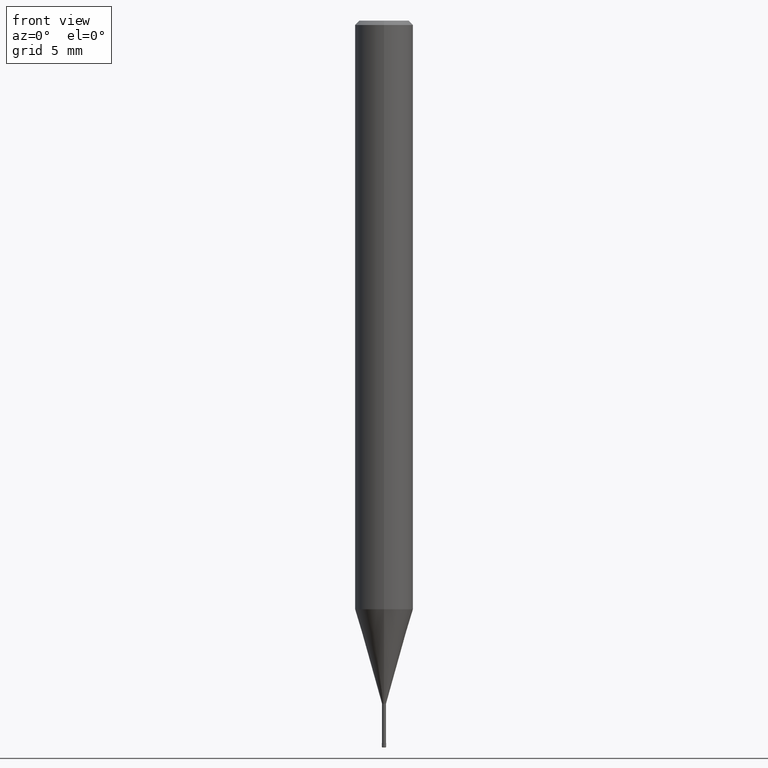
[diagram: clean part render]
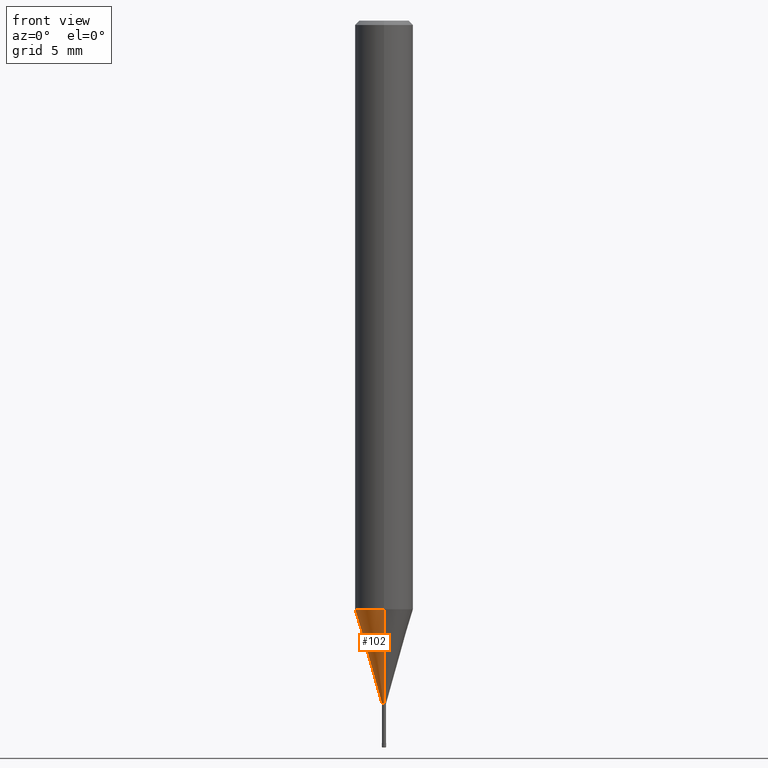
[diagram: same view with one face highlighted and labeled with its STEP entity id]
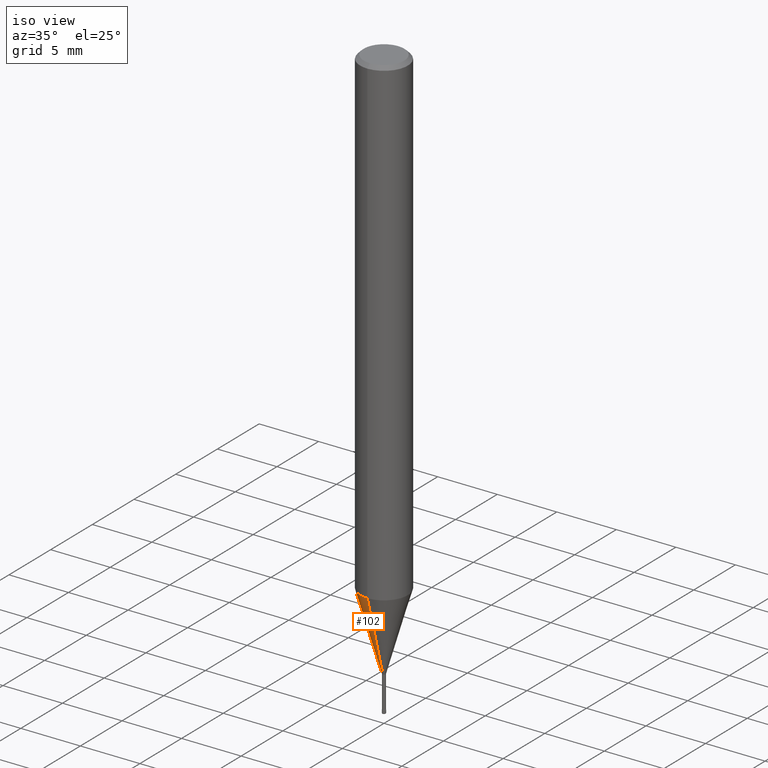
[diagram: same view with one face highlighted and labeled with its STEP entity id]
A machine part, front view. The second image highlights one B-rep face of the part: STEP entity #102.
A second angle (iso view) of the same face is appended — the face is thin or edge-on in the first view.
In plain terms, the highlighted conical surface has half-angle 16 deg.
Its self-contained STEP definition (entity closure, byte-faithful):
#102=ADVANCED_FACE('',(#256),#257,.T.);
#104=VERTEX_POINT('',#259);
#118=VERTEX_POINT('',#276);
#136=VERTEX_POINT('',#296);
#154=EDGE_CURVE('',#216,#136,#316,.T.);
#156=EDGE_CURVE('',#136,#104,#318,.T.);
#188=EDGE_CURVE('',#118,#104,#354,.T.);
#202=EDGE_CURVE('',#118,#216,#370,.T.);
#216=VERTEX_POINT('',#384);
#256=FACE_OUTER_BOUND('',#419,.T.);
#257=CONICAL_SURFACE('',#420,1.06745,0.279253818445948);
#259=CARTESIAN_POINT('',(0.0,0.13495,-47.0));
#276=CARTESIAN_POINT('',(1.6526062744833E-017,-0.13495,-47.0));
#296=CARTESIAN_POINT('',(0.0,1.99995,-40.496));
#316=CIRCLE('',#491,1.99995);
#318=LINE('',#494,#495);
#354=CIRCLE('',#542,0.13495);
#370=LINE('',#563,#564);
#384=CARTESIAN_POINT('',(2.44915147732706E-016,-1.99995,-40.496));
#419=EDGE_LOOP('',(#613,#614,#615,#616));
#420=AXIS2_PLACEMENT_3D('',#617,#618,#619);
#491=AXIS2_PLACEMENT_3D('',#695,#696,#697);
#494=CARTESIAN_POINT('',(-1.3072060523877E-016,1.06745,-43.748));
#495=VECTOR('',#698,1.0);
#542=AXIS2_PLACEMENT_3D('',#750,#751,#752);
#563=CARTESIAN_POINT('',(1.3072060523877E-016,-1.06745,-43.748));
#564=VECTOR('',#774,1.0);
#613=ORIENTED_EDGE('',*,*,#156,.T.);
#614=ORIENTED_EDGE('',*,*,#188,.F.);
#615=ORIENTED_EDGE('',*,*,#202,.T.);
#616=ORIENTED_EDGE('',*,*,#154,.T.);
#617=CARTESIAN_POINT('',(0.0,0.0,-43.748));
#618=DIRECTION('',(-0.0,-0.0,1.0));
#619=DIRECTION('',(0.0,1.0,0.0));
#695=CARTESIAN_POINT('',(0.0,0.0,-40.496));
#696=DIRECTION('',(0.0,0.0,-1.0));
#697=DIRECTION('',(0.0,1.0,0.0));
#698=DIRECTION('',(3.3754859704966E-017,-0.275638449854572,-0.961261382227419));
#750=CARTESIAN_POINT('',(0.0,0.0,-47.0));
#751=DIRECTION('',(0.0,0.0,-1.0));
#752=DIRECTION('',(0.0,1.0,0.0));
#774=DIRECTION('',(3.3754859704966E-017,-0.275638449854572,0.961261382227419));